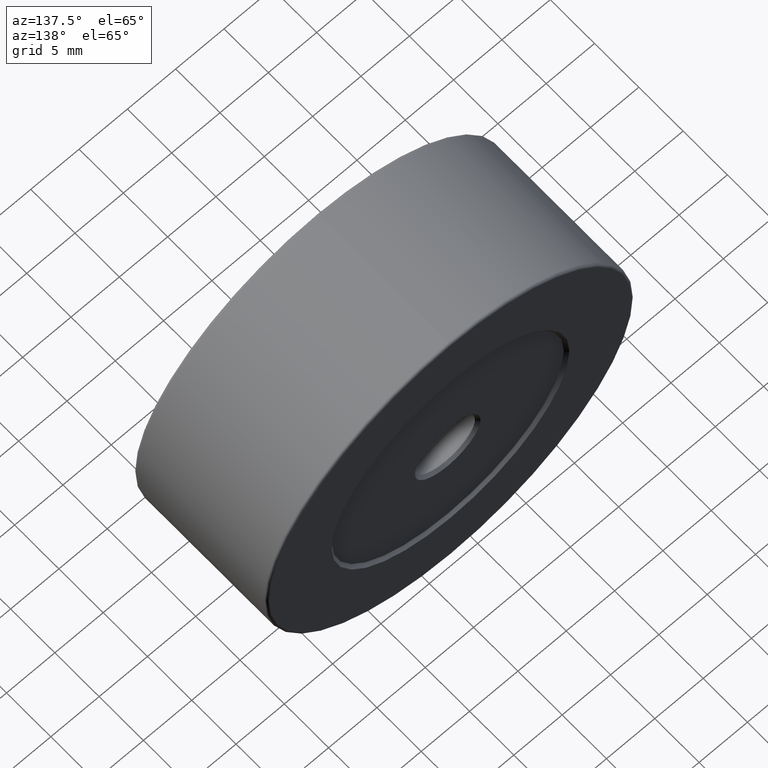
[diagram: clean part render]
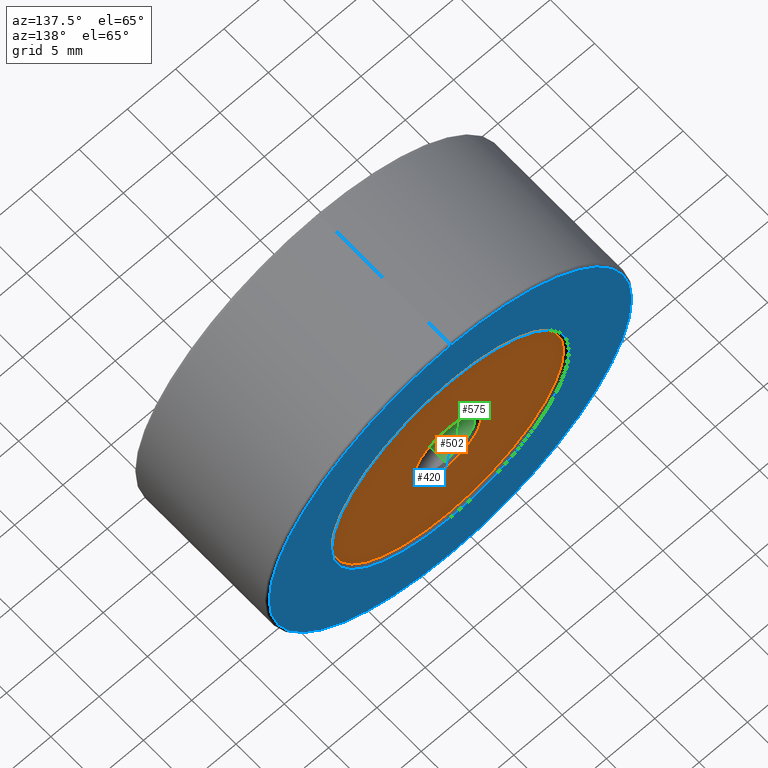
[diagram: same view with three faces highlighted in distinct colors, each labeled with its STEP entity id]
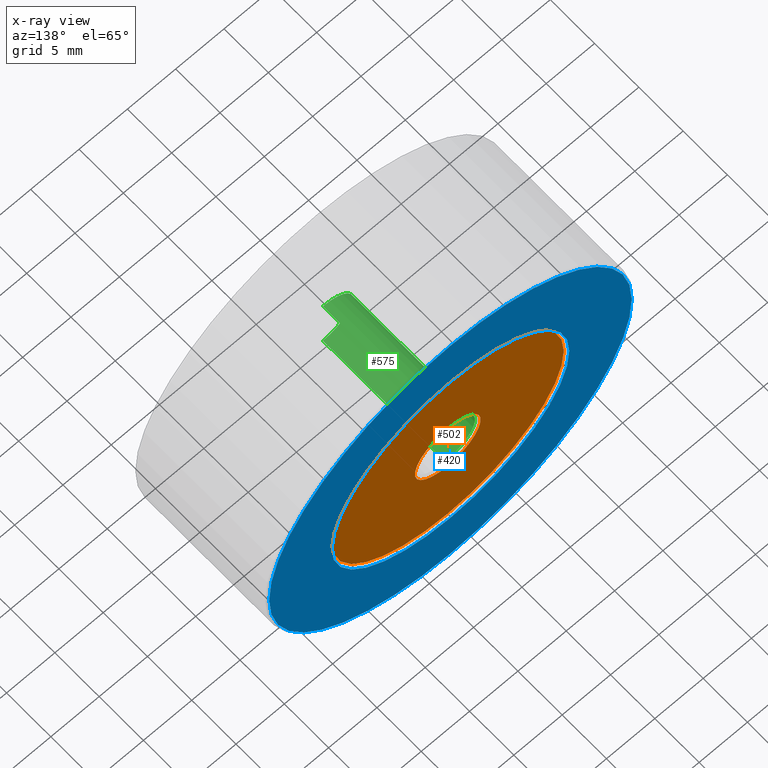
[diagram: x-ray of the same camera — body ghosted, the three highlighted faces saturated]
A machine part, auxiliary view with three faces highlighted in distinct colors.
The next image is the same camera in x-ray (body ghosted, the three faces saturated) — at least one of them is partly hidden behind the body in this view.
Their STEP definitions:

[orange] entity #502 — the highlighted planar face has unit normal (0, 1, 0).
#13 = DIRECTION ( 'NONE',  ( 0.000000000000000000, 0.000000000000000000, 1.000000000000000000 ) ) ;
#29 = CARTESIAN_POINT ( 'NONE',  ( -7.546808913101048510, 4.306404872697271458, 41.39999999999999147 ) ) ;
#45 = EDGE_CURVE ( 'NONE', #594, #370, #486, .T. ) ;
#91 = DIRECTION ( 'NONE',  ( -0.000000000000000000, -1.000000000000000000, -0.000000000000000000 ) ) ;
#96 = DIRECTION ( 'NONE',  ( 0.000000000000000000, -0.000000000000000000, 1.000000000000000000 ) ) ;
#100 = EDGE_CURVE ( 'NONE', #370, #594, #142, .T. ) ;
#107 = DIRECTION ( 'NONE',  ( 0.000000000000000000, 1.000000000000000000, 0.000000000000000000 ) ) ;
#109 = AXIS2_PLACEMENT_3D ( 'NONE', #387, #572, #201 ) ;
#111 = EDGE_CURVE ( 'NONE', #516, #576, #508, .T. ) ;
#114 = ORIENTED_EDGE ( 'NONE', *, *, #45, .T. ) ;
#142 = CIRCLE ( 'NONE', #148, 3.399999999999993250 ) ;
#148 = AXIS2_PLACEMENT_3D ( 'NONE', #301, #331, #13 ) ;
#180 = EDGE_LOOP ( 'NONE', ( #114, #421 ) ) ;
#201 = DIRECTION ( 'NONE',  ( 0.000000000000000000, 0.000000000000000000, 1.000000000000000000 ) ) ;
#210 = DIRECTION ( 'NONE',  ( 0.000000000000000000, 0.000000000000000000, 1.000000000000000000 ) ) ;
#221 = ORIENTED_EDGE ( 'NONE', *, *, #565, .T. ) ;
#224 = CARTESIAN_POINT ( 'NONE',  ( -7.546808913101048510, 4.306404872697271458, 38.00000000000000000 ) ) ;
#236 = DIRECTION ( 'NONE',  ( 0.000000000000000000, 1.000000000000000000, 0.000000000000000000 ) ) ;
#238 = EDGE_LOOP ( 'NONE', ( #221, #579 ) ) ;
#251 = CIRCLE ( 'NONE', #597, 12.00000000000000355 ) ;
#265 = AXIS2_PLACEMENT_3D ( 'NONE', #224, #91, #461 ) ;
#271 = CARTESIAN_POINT ( 'NONE',  ( -7.546808913101048510, 4.306404872697271458, 34.60000000000000853 ) ) ;
#277 = FACE_OUTER_BOUND ( 'NONE', #238, .T. ) ;
#291 = CARTESIAN_POINT ( 'NONE',  ( -7.546808913101048510, 4.306404872697271458, 38.00000000000000000 ) ) ;
#301 = CARTESIAN_POINT ( 'NONE',  ( -7.546808913101048510, 4.306404872697271458, 38.00000000000000000 ) ) ;
#326 = CARTESIAN_POINT ( 'NONE',  ( -7.546808913101046734, 4.306404872697271458, 25.99999999999999645 ) ) ;
#331 = DIRECTION ( 'NONE',  ( -0.000000000000000000, -1.000000000000000000, -0.000000000000000000 ) ) ;
#365 = FACE_BOUND ( 'NONE', #180, .T. ) ;
#370 = VERTEX_POINT ( 'NONE', #271 ) ;
#387 = CARTESIAN_POINT ( 'NONE',  ( -7.546808913101048510, 4.306404872697271458, 38.00000000000000000 ) ) ;
#413 = CARTESIAN_POINT ( 'NONE',  ( -7.546808913101048510, 4.306404872697271458, 38.00000000000000000 ) ) ;
#421 = ORIENTED_EDGE ( 'NONE', *, *, #100, .T. ) ;
#461 = DIRECTION ( 'NONE',  ( 0.000000000000000000, 0.000000000000000000, 1.000000000000000000 ) ) ;
#462 = PLANE ( 'NONE',  #609 ) ;
#486 = CIRCLE ( 'NONE', #265, 3.399999999999993250 ) ;
#490 = CARTESIAN_POINT ( 'NONE',  ( -7.546808913101048510, 4.306404872697271458, 50.00000000000000000 ) ) ;
#502 = ADVANCED_FACE ( 'NONE', ( #365, #277 ), #462, .T. ) ;
#508 = CIRCLE ( 'NONE', #109, 12.00000000000000355 ) ;
#516 = VERTEX_POINT ( 'NONE', #326 ) ;
#565 = EDGE_CURVE ( 'NONE', #576, #516, #251, .T. ) ;
#572 = DIRECTION ( 'NONE',  ( 0.000000000000000000, 1.000000000000000000, 0.000000000000000000 ) ) ;
#576 = VERTEX_POINT ( 'NONE', #490 ) ;
#579 = ORIENTED_EDGE ( 'NONE', *, *, #111, .T. ) ;
#594 = VERTEX_POINT ( 'NONE', #29 ) ;
#597 = AXIS2_PLACEMENT_3D ( 'NONE', #291, #107, #210 ) ;
#609 = AXIS2_PLACEMENT_3D ( 'NONE', #413, #236, #96 ) ;

[blue] entity #420 — the highlighted planar face has unit normal (0, 1, 0).
#3 = FACE_BOUND ( 'NONE', #104, .T. ) ;
#37 = CARTESIAN_POINT ( 'NONE',  ( -7.546808913101048510, 4.606404872697272168, 38.00000000000000000 ) ) ;
#50 = DIRECTION ( 'NONE',  ( 0.000000000000000000, -0.000000000000000000, 1.000000000000000000 ) ) ;
#67 = ORIENTED_EDGE ( 'NONE', *, *, #375, .T. ) ;
#77 = EDGE_CURVE ( 'NONE', #345, #351, #394, .T. ) ;
#86 = CARTESIAN_POINT ( 'NONE',  ( -7.546808913101045846, 4.606404872697272168, 19.25000000000000000 ) ) ;
#90 = AXIS2_PLACEMENT_3D ( 'NONE', #363, #555, #191 ) ;
#99 = PLANE ( 'NONE',  #447 ) ;
#104 = EDGE_LOOP ( 'NONE', ( #67, #212 ) ) ;
#118 = AXIS2_PLACEMENT_3D ( 'NONE', #171, #350, #306 ) ;
#159 = ORIENTED_EDGE ( 'NONE', *, *, #77, .T. ) ;
#165 = CIRCLE ( 'NONE', #90, 12.29999999999998472 ) ;
#171 = CARTESIAN_POINT ( 'NONE',  ( -7.546808913101048510, 4.606404872697272168, 38.00000000000000000 ) ) ;
#188 = CIRCLE ( 'NONE', #366, 12.29999999999998472 ) ;
#191 = DIRECTION ( 'NONE',  ( 0.000000000000000000, 0.000000000000000000, 1.000000000000000000 ) ) ;
#192 = DIRECTION ( 'NONE',  ( 0.000000000000000000, 1.000000000000000000, 0.000000000000000000 ) ) ;
#212 = ORIENTED_EDGE ( 'NONE', *, *, #487, .T. ) ;
#214 = AXIS2_PLACEMENT_3D ( 'NONE', #287, #337, #523 ) ;
#222 = CARTESIAN_POINT ( 'NONE',  ( -7.546808913101048510, 4.606404872697272168, 50.29999999999998295 ) ) ;
#239 = FACE_OUTER_BOUND ( 'NONE', #302, .T. ) ;
#249 = VERTEX_POINT ( 'NONE', #222 ) ;
#287 = CARTESIAN_POINT ( 'NONE',  ( -7.546808913101048510, 4.606404872697272168, 38.00000000000000000 ) ) ;
#302 = EDGE_LOOP ( 'NONE', ( #159, #313 ) ) ;
#306 = DIRECTION ( 'NONE',  ( 0.000000000000000000, 0.000000000000000000, 1.000000000000000000 ) ) ;
#313 = ORIENTED_EDGE ( 'NONE', *, *, #396, .T. ) ;
#337 = DIRECTION ( 'NONE',  ( 0.000000000000000000, 1.000000000000000000, 0.000000000000000000 ) ) ;
#345 = VERTEX_POINT ( 'NONE', #591 ) ;
#350 = DIRECTION ( 'NONE',  ( 0.000000000000000000, 1.000000000000000000, 0.000000000000000000 ) ) ;
#351 = VERTEX_POINT ( 'NONE', #86 ) ;
#363 = CARTESIAN_POINT ( 'NONE',  ( -7.546808913101048510, 4.606404872697272168, 38.00000000000000000 ) ) ;
#366 = AXIS2_PLACEMENT_3D ( 'NONE', #37, #544, #600 ) ;
#375 = EDGE_CURVE ( 'NONE', #249, #384, #188, .T. ) ;
#384 = VERTEX_POINT ( 'NONE', #537 ) ;
#393 = CIRCLE ( 'NONE', #118, 18.74999999999999645 ) ;
#394 = CIRCLE ( 'NONE', #214, 18.74999999999999645 ) ;
#396 = EDGE_CURVE ( 'NONE', #351, #345, #393, .T. ) ;
#420 = ADVANCED_FACE ( 'NONE', ( #239, #3 ), #99, .T. ) ;
#447 = AXIS2_PLACEMENT_3D ( 'NONE', #513, #192, #50 ) ;
#487 = EDGE_CURVE ( 'NONE', #384, #249, #165, .T. ) ;
#513 = CARTESIAN_POINT ( 'NONE',  ( -7.546808913101048510, 4.606404872697272168, 38.00000000000000000 ) ) ;
#523 = DIRECTION ( 'NONE',  ( 0.000000000000000000, 0.000000000000000000, 1.000000000000000000 ) ) ;
#537 = CARTESIAN_POINT ( 'NONE',  ( -7.546808913101046734, 4.606404872697272168, 25.70000000000000995 ) ) ;
#544 = DIRECTION ( 'NONE',  ( -0.000000000000000000, -1.000000000000000000, -0.000000000000000000 ) ) ;
#555 = DIRECTION ( 'NONE',  ( -0.000000000000000000, -1.000000000000000000, -0.000000000000000000 ) ) ;
#591 = CARTESIAN_POINT ( 'NONE',  ( -7.546808913101048510, 4.606404872697272168, 56.74999999999999289 ) ) ;
#600 = DIRECTION ( 'NONE',  ( 0.000000000000000000, 0.000000000000000000, 1.000000000000000000 ) ) ;

[green] entity #575 — the highlighted cylindrical surface (partial cylindrical patch) has radius 3.1 mm, axis along (-0, 1, -0).
#49 = ORIENTED_EDGE ( 'NONE', *, *, #325, .T. ) ;
#51 = ORIENTED_EDGE ( 'NONE', *, *, #499, .F. ) ;
#74 = LINE ( 'NONE', #357, #356 ) ;
#76 = CYLINDRICAL_SURFACE ( 'NONE', #577, 3.099999999999998757 ) ;
#93 = DIRECTION ( 'NONE',  ( -0.000000000000000000, 1.000000000000000000, -0.000000000000000000 ) ) ;
#122 = VERTEX_POINT ( 'NONE', #583 ) ;
#123 = DIRECTION ( 'NONE',  ( 0.000000000000000000, 0.000000000000000000, 1.000000000000000000 ) ) ;
#156 = VERTEX_POINT ( 'NONE', #246 ) ;
#157 = VECTOR ( 'NONE', #93, 1000.000000000000000 ) ;
#173 = DIRECTION ( 'NONE',  ( -0.000000000000000000, 1.000000000000000000, -0.000000000000000000 ) ) ;
#194 = VERTEX_POINT ( 'NONE', #255 ) ;
#241 = CARTESIAN_POINT ( 'NONE',  ( -7.546808913101048510, -10.39359512730272783, 38.00000000000000000 ) ) ;
#246 = CARTESIAN_POINT ( 'NONE',  ( -7.546808913101048510, 4.006404872697271635, 41.09999999999999432 ) ) ;
#255 = CARTESIAN_POINT ( 'NONE',  ( -7.546808913101048510, -9.793595127302728187, 41.09999999999999432 ) ) ;
#303 = DIRECTION ( 'NONE',  ( 0.000000000000000000, 0.000000000000000000, -1.000000000000000000 ) ) ;
#317 = ORIENTED_EDGE ( 'NONE', *, *, #543, .T. ) ;
#320 = LINE ( 'NONE', #369, #157 ) ;
#325 = EDGE_CURVE ( 'NONE', #122, #521, #74, .T. ) ;
#330 = FACE_OUTER_BOUND ( 'NONE', #567, .T. ) ;
#338 = ORIENTED_EDGE ( 'NONE', *, *, #339, .T. ) ;
#339 = EDGE_CURVE ( 'NONE', #521, #156, #423, .T. ) ;
#356 = VECTOR ( 'NONE', #390, 1000.000000000000000 ) ;
#357 = CARTESIAN_POINT ( 'NONE',  ( -7.546808913101048510, -10.39359512730272783, 34.89999999999999858 ) ) ;
#369 = CARTESIAN_POINT ( 'NONE',  ( -7.546808913101048510, -10.39359512730272783, 41.09999999999999432 ) ) ;
#390 = DIRECTION ( 'NONE',  ( -0.000000000000000000, 1.000000000000000000, -0.000000000000000000 ) ) ;
#406 = DIRECTION ( 'NONE',  ( 0.000000000000000000, 1.000000000000000000, 0.000000000000000000 ) ) ;
#423 = CIRCLE ( 'NONE', #568, 3.099999999999998757 ) ;
#427 = CARTESIAN_POINT ( 'NONE',  ( -7.546808913101048510, -9.793595127302728187, 38.00000000000000000 ) ) ;
#446 = DIRECTION ( 'NONE',  ( -0.000000000000000000, -1.000000000000000000, -0.000000000000000000 ) ) ;
#495 = CIRCLE ( 'NONE', #517, 3.099999999999998757 ) ;
#499 = EDGE_CURVE ( 'NONE', #194, #156, #320, .T. ) ;
#504 = DIRECTION ( 'NONE',  ( 0.000000000000000000, 0.000000000000000000, 1.000000000000000000 ) ) ;
#506 = CARTESIAN_POINT ( 'NONE',  ( -7.546808913101048510, 4.006404872697271635, 38.00000000000000000 ) ) ;
#514 = CARTESIAN_POINT ( 'NONE',  ( -7.546808913101048510, 4.006404872697271635, 34.89999999999999858 ) ) ;
#517 = AXIS2_PLACEMENT_3D ( 'NONE', #427, #446, #303 ) ;
#521 = VERTEX_POINT ( 'NONE', #514 ) ;
#543 = EDGE_CURVE ( 'NONE', #194, #122, #495, .T. ) ;
#567 = EDGE_LOOP ( 'NONE', ( #317, #49, #338, #51 ) ) ;
#568 = AXIS2_PLACEMENT_3D ( 'NONE', #506, #406, #504 ) ;
#575 = ADVANCED_FACE ( 'NONE', ( #330 ), #76, .F. ) ;
#577 = AXIS2_PLACEMENT_3D ( 'NONE', #241, #173, #123 ) ;
#583 = CARTESIAN_POINT ( 'NONE',  ( -7.546808913101048510, -9.793595127302728187, 34.89999999999999858 ) ) ;